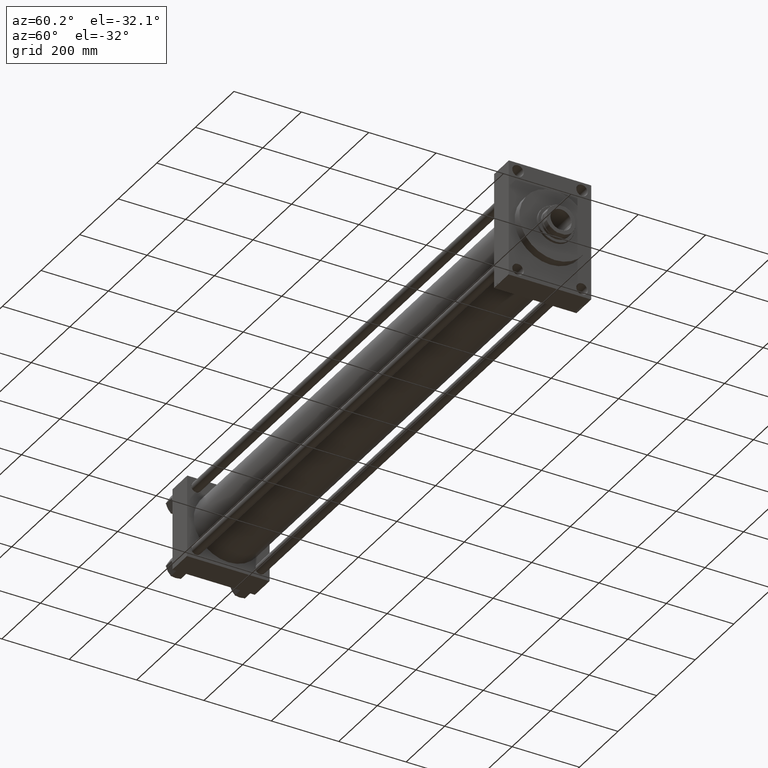
[diagram: clean part render]
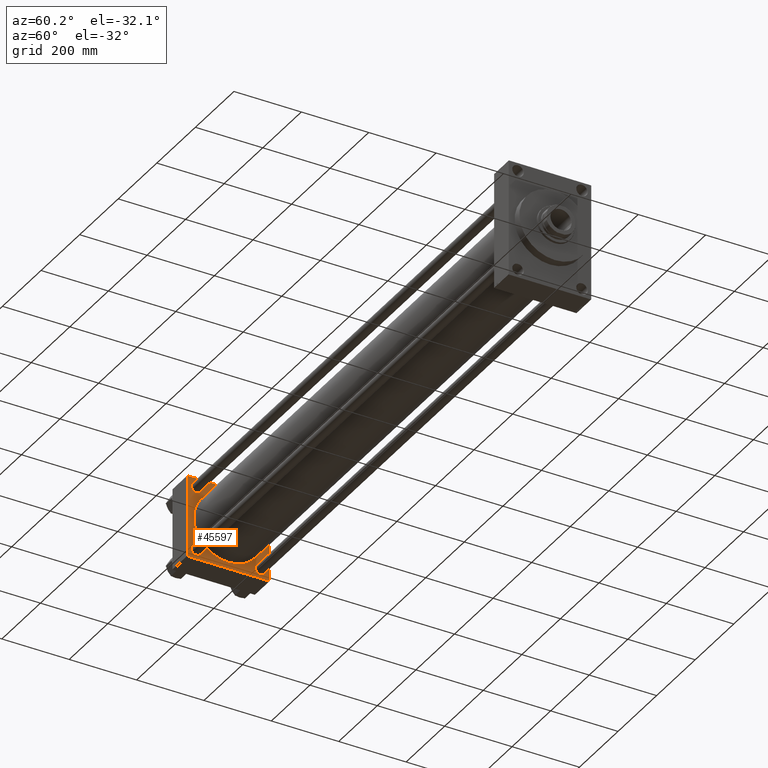
[diagram: same view with one face highlighted and labeled with its STEP entity id]
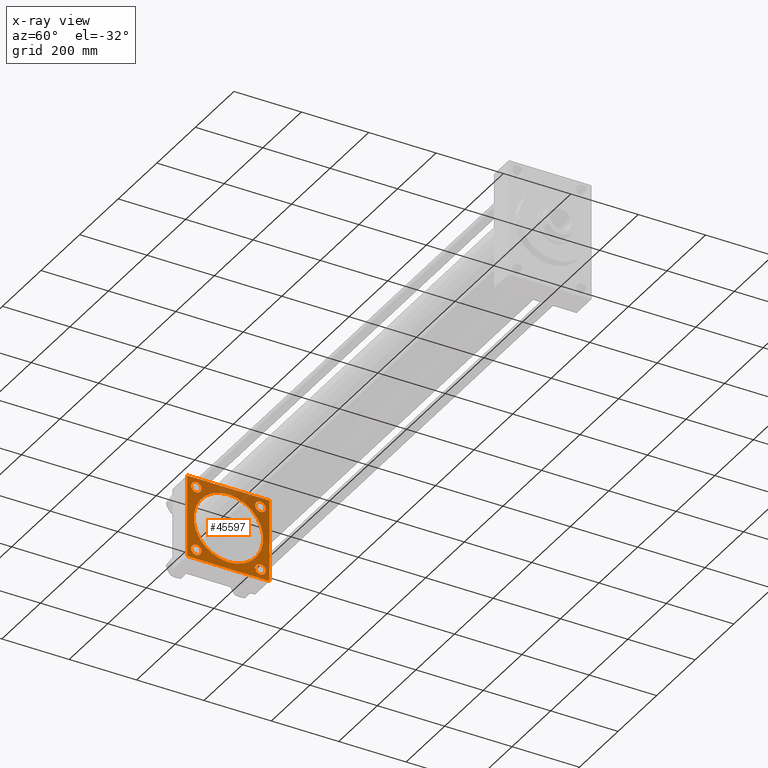
[diagram: x-ray of the same camera — body ghosted, the highlighted face saturated]
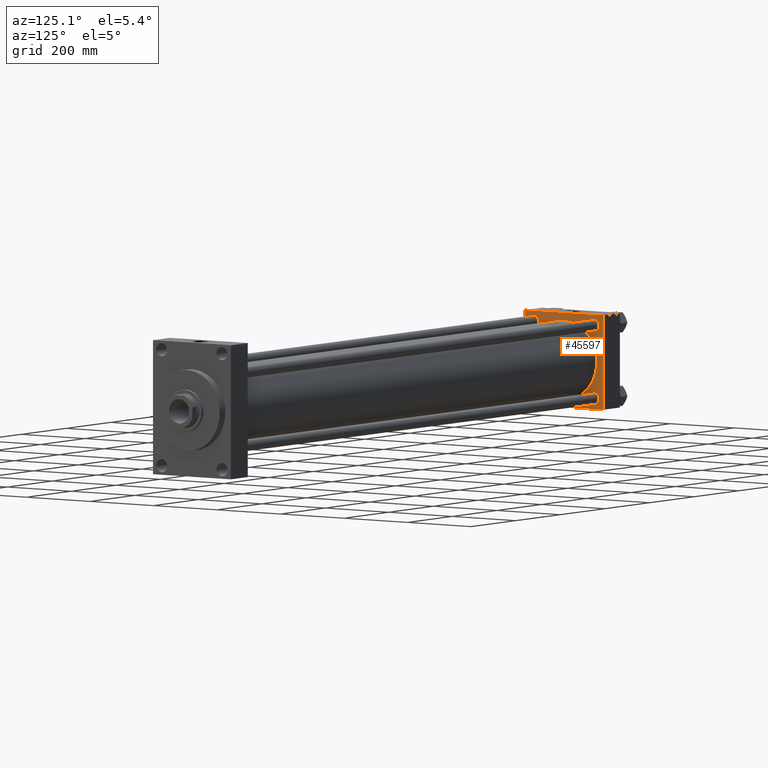
[diagram: same view with one face highlighted and labeled with its STEP entity id]
A machine part, auxiliary view. The second image highlights one B-rep face of the part: STEP entity #45597.
The next image is the same camera in x-ray: the body ghosted, the highlighted face saturated — about 27% of this face is hidden behind the body in this view.
A second angle (auxiliary view) of the same face is appended — the face is thin or edge-on in the first view.
In plain terms, the highlighted planar face has unit normal (-1, 0, 0).
Its self-contained STEP definition (entity closure, byte-faithful):
#348 = EDGE_CURVE ( 'NONE', #31773, #16358, #22608, .T. ) ;
#404 = DIRECTION ( 'NONE',  ( -1.000000000000000000, 0.000000000000000000, 0.000000000000000000 ) ) ;
#452 = VECTOR ( 'NONE', #40892, 1000.000000000000000 ) ;
#543 = CARTESIAN_POINT ( 'NONE',  ( 76.00000000000000000, -122.0000000000000000, -122.5000000000000568 ) ) ;
#1310 = VERTEX_POINT ( 'NONE', #21599 ) ;
#1973 = CARTESIAN_POINT ( 'NONE',  ( 76.00000000000000000, 95.09999999999999432, 95.10000000000002274 ) ) ;
#2021 = EDGE_CURVE ( 'NONE', #23591, #25677, #38009, .T. ) ;
#2503 = VERTEX_POINT ( 'NONE', #15025 ) ;
#2662 = VECTOR ( 'NONE', #26235, 1000.000000000000114 ) ;
#2688 = DIRECTION ( 'NONE',  ( 0.000000000000000000, 0.000000000000000000, 1.000000000000000000 ) ) ;
#3137 = CIRCLE ( 'NONE', #13141, 15.50000000000051337 ) ;
#3213 = VERTEX_POINT ( 'NONE', #24702 ) ;
#3504 = ORIENTED_EDGE ( 'NONE', *, *, #15496, .T. ) ;
#3534 = ORIENTED_EDGE ( 'NONE', *, *, #31375, .T. ) ;
#3547 = ORIENTED_EDGE ( 'NONE', *, *, #17311, .F. ) ;
#4047 = CARTESIAN_POINT ( 'NONE',  ( 76.00000000000000000, 122.0000000000000568, -122.5000000000000000 ) ) ;
#4100 = ORIENTED_EDGE ( 'NONE', *, *, #28108, .T. ) ;
#4520 = VERTEX_POINT ( 'NONE', #14119 ) ;
#4765 = CARTESIAN_POINT ( 'NONE',  ( 76.00000000000000000, -95.09999999999996589, -95.10000000000005116 ) ) ;
#4774 = ORIENTED_EDGE ( 'NONE', *, *, #16780, .T. ) ;
#5155 = DIRECTION ( 'NONE',  ( 1.000000000000000000, -0.000000000000000000, -0.000000000000000000 ) ) ;
#6096 = CARTESIAN_POINT ( 'NONE',  ( 76.00000000000000000, 122.5000000000000568, -122.5000000000000000 ) ) ;
#6301 = DIRECTION ( 'NONE',  ( 0.000000000000000000, 0.000000000000000000, 1.000000000000000000 ) ) ;
#6412 = ORIENTED_EDGE ( 'NONE', *, *, #2021, .F. ) ;
#6602 = AXIS2_PLACEMENT_3D ( 'NONE', #17417, #21279, #7291 ) ;
#6649 = ORIENTED_EDGE ( 'NONE', *, *, #7973, .F. ) ;
#7291 = DIRECTION ( 'NONE',  ( 0.000000000000000000, 0.000000000000000000, 1.000000000000000000 ) ) ;
#7973 = EDGE_CURVE ( 'NONE', #46989, #1310, #42696, .T. ) ;
#8257 = ORIENTED_EDGE ( 'NONE', *, *, #28152, .T. ) ;
#8388 = DIRECTION ( 'NONE',  ( 0.000000000000000000, 0.000000000000000000, 1.000000000000000000 ) ) ;
#8552 = VERTEX_POINT ( 'NONE', #19670 ) ;
#8833 = EDGE_CURVE ( 'NONE', #44464, #3213, #36006, .T. ) ;
#8856 = DIRECTION ( 'NONE',  ( 0.000000000000000000, 0.000000000000000000, -1.000000000000000000 ) ) ;
#8991 = AXIS2_PLACEMENT_3D ( 'NONE', #1973, #42673, #2688 ) ;
#9009 = CARTESIAN_POINT ( 'NONE',  ( 76.00000000000000000, -122.5000000000000000, -122.0000000000000568 ) ) ;
#9431 = EDGE_LOOP ( 'NONE', ( #6649, #4100, #6412, #4774, #3504, #24070, #8257, #37307 ) ) ;
#9634 = VECTOR ( 'NONE', #37819, 1000.000000000000000 ) ;
#9673 = CARTESIAN_POINT ( 'NONE',  ( 76.00000000000000000, 122.0000000000000568, 122.5000000000000284 ) ) ;
#10514 = ORIENTED_EDGE ( 'NONE', *, *, #31324, .T. ) ;
#11093 = FACE_BOUND ( 'NONE', #14655, .T. ) ;
#11103 = VERTEX_POINT ( 'NONE', #9673 ) ;
#11721 = CARTESIAN_POINT ( 'NONE',  ( 76.00000000000000000, 122.5000000000000568, 122.0000000000000853 ) ) ;
#12223 = CARTESIAN_POINT ( 'NONE',  ( 76.00000000000000000, 95.09999999999999432, -95.10000000000002274 ) ) ;
#12363 = CIRCLE ( 'NONE', #18510, 15.50000000000051337 ) ;
#12459 = CARTESIAN_POINT ( 'NONE',  ( 76.00000000000000000, -95.09999999999996589, 110.6000000000005627 ) ) ;
#12742 = CIRCLE ( 'NONE', #25848, 15.50000000000029132 ) ;
#12857 = ORIENTED_EDGE ( 'NONE', *, *, #21036, .T. ) ;
#13010 = VECTOR ( 'NONE', #45774, 1000.000000000000000 ) ;
#13141 = AXIS2_PLACEMENT_3D ( 'NONE', #40904, #44513, #22856 ) ;
#13257 = DIRECTION ( 'NONE',  ( -0.000000000000000000, 0.7071067811865474617, 0.7071067811865474617 ) ) ;
#13520 = CARTESIAN_POINT ( 'NONE',  ( 76.00000000000000000, 95.09999999999999432, -95.10000000000002274 ) ) ;
#14119 = CARTESIAN_POINT ( 'NONE',  ( 76.00000000000000000, 95.09999999999999432, 79.59999999999972431 ) ) ;
#14232 = FACE_BOUND ( 'NONE', #27414, .T. ) ;
#14655 = EDGE_LOOP ( 'NONE', ( #12857, #39373 ) ) ;
#14718 = FACE_BOUND ( 'NONE', #26538, .T. ) ;
#15025 = CARTESIAN_POINT ( 'NONE',  ( 76.00000000000000000, -95.09999999999996589, -110.6000000000005627 ) ) ;
#15335 = DIRECTION ( 'NONE',  ( -1.000000000000000000, 0.000000000000000000, 0.000000000000000000 ) ) ;
#15408 = VERTEX_POINT ( 'NONE', #36860 ) ;
#15496 = EDGE_CURVE ( 'NONE', #11103, #31773, #37332, .T. ) ;
#15897 = CIRCLE ( 'NONE', #43563, 15.50000000000029132 ) ;
#15908 = EDGE_CURVE ( 'NONE', #15408, #8552, #12742, .T. ) ;
#15987 = AXIS2_PLACEMENT_3D ( 'NONE', #34988, #35704, #16918 ) ;
#16081 = AXIS2_PLACEMENT_3D ( 'NONE', #17602, #25790, #29643 ) ;
#16247 = CARTESIAN_POINT ( 'NONE',  ( 76.00000000000007105, -2.602085213965210642E-15, 0.000000000000000000 ) ) ;
#16358 = VERTEX_POINT ( 'NONE', #30840 ) ;
#16395 = LINE ( 'NONE', #31101, #35327 ) ;
#16531 = VECTOR ( 'NONE', #8856, 1000.000000000000000 ) ;
#16780 = EDGE_CURVE ( 'NONE', #23591, #11103, #23314, .T. ) ;
#16918 = DIRECTION ( 'NONE',  ( 0.000000000000000000, 0.000000000000000000, 1.000000000000000000 ) ) ;
#16999 = CARTESIAN_POINT ( 'NONE',  ( 76.00000000000000000, 122.5000000000000568, -121.9999999999999432 ) ) ;
#17157 = EDGE_CURVE ( 'NONE', #17189, #38064, #45084, .T. ) ;
#17175 = DIRECTION ( 'NONE',  ( 0.000000000000000000, -1.000000000000000000, -2.265761274745216987E-16 ) ) ;
#17189 = VERTEX_POINT ( 'NONE', #27812 ) ;
#17311 = EDGE_CURVE ( 'NONE', #38064, #17189, #40482, .T. ) ;
#17365 = EDGE_CURVE ( 'NONE', #22760, #1310, #45089, .T. ) ;
#17417 = CARTESIAN_POINT ( 'NONE',  ( 76.00000000000007105, -2.602085213965210642E-15, 0.000000000000000000 ) ) ;
#17602 = CARTESIAN_POINT ( 'NONE',  ( 76.00000000000000000, 0.000000000000000000, 0.000000000000000000 ) ) ;
#18510 = AXIS2_PLACEMENT_3D ( 'NONE', #4765, #30312, #8388 ) ;
#19264 = CARTESIAN_POINT ( 'NONE',  ( 76.00000000000000000, 122.5000000000000568, 122.5000000000000284 ) ) ;
#19445 = CARTESIAN_POINT ( 'NONE',  ( 76.00000000000000000, 122.0000000000000568, 122.5000000000000284 ) ) ;
#19595 = ORIENTED_EDGE ( 'NONE', *, *, #8833, .T. ) ;
#19670 = CARTESIAN_POINT ( 'NONE',  ( 76.00000000000000000, 95.09999999999999432, -110.6000000000003070 ) ) ;
#19716 = VECTOR ( 'NONE', #22249, 1000.000000000000114 ) ;
#20019 = CIRCLE ( 'NONE', #28490, 15.50000000000051337 ) ;
#20072 = CARTESIAN_POINT ( 'NONE',  ( 76.00000000000000000, 95.09999999999999432, 95.10000000000002274 ) ) ;
#20813 = DIRECTION ( 'NONE',  ( 0.000000000000000000, 0.000000000000000000, 1.000000000000000000 ) ) ;
#20990 = EDGE_LOOP ( 'NONE', ( #32485, #34683 ) ) ;
#21036 = EDGE_CURVE ( 'NONE', #4520, #45788, #15897, .T. ) ;
#21279 = DIRECTION ( 'NONE',  ( 1.000000000000000000, -0.000000000000000000, -0.000000000000000000 ) ) ;
#21599 = CARTESIAN_POINT ( 'NONE',  ( 76.00000000000000000, -122.0000000000000000, -122.5000000000000568 ) ) ;
#22249 = DIRECTION ( 'NONE',  ( 0.000000000000000000, 0.7071067811865474617, -0.7071067811865474617 ) ) ;
#22430 = EDGE_LOOP ( 'NONE', ( #27275, #10514 ) ) ;
#22608 = LINE ( 'NONE', #44510, #2662 ) ;
#22760 = VERTEX_POINT ( 'NONE', #9009 ) ;
#22856 = DIRECTION ( 'NONE',  ( 0.000000000000000000, 0.000000000000000000, 1.000000000000000000 ) ) ;
#23238 = DIRECTION ( 'NONE',  ( 0.000000000000000000, 0.000000000000000000, 1.000000000000000000 ) ) ;
#23314 = LINE ( 'NONE', #19445, #452 ) ;
#23591 = VERTEX_POINT ( 'NONE', #11721 ) ;
#23641 = CARTESIAN_POINT ( 'NONE',  ( 76.00000000000000000, -122.4999999999999716, 122.5000000000000000 ) ) ;
#24070 = ORIENTED_EDGE ( 'NONE', *, *, #348, .T. ) ;
#24079 = CARTESIAN_POINT ( 'NONE',  ( 76.00000000000000000, 95.09999999999999432, 110.6000000000003070 ) ) ;
#24702 = CARTESIAN_POINT ( 'NONE',  ( 76.00000000000000000, -95.09999999999996589, 79.59999999999952536 ) ) ;
#25164 = CIRCLE ( 'NONE', #8991, 15.50000000000029132 ) ;
#25677 = VERTEX_POINT ( 'NONE', #16999 ) ;
#25790 = DIRECTION ( 'NONE',  ( -1.000000000000000000, 0.000000000000000000, 0.000000000000000000 ) ) ;
#25848 = AXIS2_PLACEMENT_3D ( 'NONE', #12223, #404, #40882 ) ;
#25977 = EDGE_CURVE ( 'NONE', #8552, #15408, #38312, .T. ) ;
#26187 = DIRECTION ( 'NONE',  ( 0.000000000000000000, 0.000000000000000000, 1.000000000000000000 ) ) ;
#26235 = DIRECTION ( 'NONE',  ( -0.000000000000000000, -0.7071067811865867636, -0.7071067811865082708 ) ) ;
#26538 = EDGE_LOOP ( 'NONE', ( #3534, #19595 ) ) ;
#27275 = ORIENTED_EDGE ( 'NONE', *, *, #33926, .T. ) ;
#27414 = EDGE_LOOP ( 'NONE', ( #3547, #28543 ) ) ;
#27420 = CARTESIAN_POINT ( 'NONE',  ( 76.00000000000000000, 122.5000000000000568, 122.5000000000000284 ) ) ;
#27812 = CARTESIAN_POINT ( 'NONE',  ( 76.00000000000007105, 1.001177681725252697E-14, -103.0000000000000000 ) ) ;
#28108 = EDGE_CURVE ( 'NONE', #46989, #25677, #16395, .T. ) ;
#28152 = EDGE_CURVE ( 'NONE', #16358, #22760, #41921, .T. ) ;
#28490 = AXIS2_PLACEMENT_3D ( 'NONE', #37962, #15335, #26187 ) ;
#28543 = ORIENTED_EDGE ( 'NONE', *, *, #17157, .F. ) ;
#28937 = PLANE ( 'NONE',  #16081 ) ;
#29643 = DIRECTION ( 'NONE',  ( 0.000000000000000000, 0.000000000000000000, 1.000000000000000000 ) ) ;
#29880 = AXIS2_PLACEMENT_3D ( 'NONE', #13520, #46517, #6301 ) ;
#30312 = DIRECTION ( 'NONE',  ( -1.000000000000000000, 0.000000000000000000, 0.000000000000000000 ) ) ;
#30840 = CARTESIAN_POINT ( 'NONE',  ( 76.00000000000000000, -122.4999999999999716, 122.0000000000001137 ) ) ;
#30916 = VERTEX_POINT ( 'NONE', #40731 ) ;
#31101 = CARTESIAN_POINT ( 'NONE',  ( 76.00000000000000000, 122.5000000000000568, -122.0000000000000000 ) ) ;
#31324 = EDGE_CURVE ( 'NONE', #30916, #2503, #12363, .T. ) ;
#31371 = VECTOR ( 'NONE', #17175, 1000.000000000000000 ) ;
#31375 = EDGE_CURVE ( 'NONE', #3213, #44464, #3137, .T. ) ;
#31400 = DIRECTION ( 'NONE',  ( -1.000000000000000000, 0.000000000000000000, 0.000000000000000000 ) ) ;
#31773 = VERTEX_POINT ( 'NONE', #42436 ) ;
#32485 = ORIENTED_EDGE ( 'NONE', *, *, #25977, .T. ) ;
#33926 = EDGE_CURVE ( 'NONE', #2503, #30916, #20019, .T. ) ;
#34330 = AXIS2_PLACEMENT_3D ( 'NONE', #16247, #5155, #20813 ) ;
#34683 = ORIENTED_EDGE ( 'NONE', *, *, #15908, .T. ) ;
#34988 = CARTESIAN_POINT ( 'NONE',  ( 76.00000000000000000, -95.09999999999996589, 95.10000000000005116 ) ) ;
#35327 = VECTOR ( 'NONE', #13257, 1000.000000000000114 ) ;
#35704 = DIRECTION ( 'NONE',  ( -1.000000000000000000, 0.000000000000000000, 0.000000000000000000 ) ) ;
#36006 = CIRCLE ( 'NONE', #15987, 15.50000000000051337 ) ;
#36860 = CARTESIAN_POINT ( 'NONE',  ( 76.00000000000000000, 95.09999999999999432, -79.59999999999972431 ) ) ;
#37307 = ORIENTED_EDGE ( 'NONE', *, *, #17365, .T. ) ;
#37332 = LINE ( 'NONE', #19264, #9634 ) ;
#37819 = DIRECTION ( 'NONE',  ( 0.000000000000000000, -1.000000000000000000, -1.132880637372608740E-16 ) ) ;
#37962 = CARTESIAN_POINT ( 'NONE',  ( 76.00000000000000000, -95.09999999999996589, -95.10000000000005116 ) ) ;
#38009 = LINE ( 'NONE', #27420, #16531 ) ;
#38064 = VERTEX_POINT ( 'NONE', #46377 ) ;
#38312 = CIRCLE ( 'NONE', #29880, 15.50000000000029132 ) ;
#39373 = ORIENTED_EDGE ( 'NONE', *, *, #40662, .T. ) ;
#40239 = FACE_OUTER_BOUND ( 'NONE', #9431, .T. ) ;
#40482 = CIRCLE ( 'NONE', #6602, 103.0000000000000000 ) ;
#40662 = EDGE_CURVE ( 'NONE', #45788, #4520, #25164, .T. ) ;
#40731 = CARTESIAN_POINT ( 'NONE',  ( 76.00000000000000000, -95.09999999999996589, -79.59999999999952536 ) ) ;
#40882 = DIRECTION ( 'NONE',  ( 0.000000000000000000, 0.000000000000000000, 1.000000000000000000 ) ) ;
#40892 = DIRECTION ( 'NONE',  ( 0.000000000000000000, -0.7071067811865868746, 0.7071067811865081598 ) ) ;
#40904 = CARTESIAN_POINT ( 'NONE',  ( 76.00000000000000000, -95.09999999999996589, 95.10000000000005116 ) ) ;
#41921 = LINE ( 'NONE', #23641, #13010 ) ;
#42436 = CARTESIAN_POINT ( 'NONE',  ( 76.00000000000000000, -121.9999999999999716, 122.5000000000000000 ) ) ;
#42673 = DIRECTION ( 'NONE',  ( -1.000000000000000000, 0.000000000000000000, 0.000000000000000000 ) ) ;
#42696 = LINE ( 'NONE', #6096, #31371 ) ;
#43563 = AXIS2_PLACEMENT_3D ( 'NONE', #20072, #31400, #23238 ) ;
#43848 = FACE_BOUND ( 'NONE', #22430, .T. ) ;
#44464 = VERTEX_POINT ( 'NONE', #12459 ) ;
#44510 = CARTESIAN_POINT ( 'NONE',  ( 76.00000000000000000, -122.4999999999999716, 122.0000000000001137 ) ) ;
#44513 = DIRECTION ( 'NONE',  ( -1.000000000000000000, 0.000000000000000000, 0.000000000000000000 ) ) ;
#45084 = CIRCLE ( 'NONE', #34330, 103.0000000000000000 ) ;
#45089 = LINE ( 'NONE', #543, #19716 ) ;
#45597 = ADVANCED_FACE ( 'NONE', ( #43848, #47215, #14718, #11093, #14232, #40239 ), #28937, .F. ) ;
#45774 = DIRECTION ( 'NONE',  ( 0.000000000000000000, -1.132880637372608493E-16, -1.000000000000000000 ) ) ;
#45788 = VERTEX_POINT ( 'NONE', #24079 ) ;
#46377 = CARTESIAN_POINT ( 'NONE',  ( 76.00000000000007105, -2.602085213965210642E-15, 103.0000000000000000 ) ) ;
#46517 = DIRECTION ( 'NONE',  ( -1.000000000000000000, 0.000000000000000000, 0.000000000000000000 ) ) ;
#46989 = VERTEX_POINT ( 'NONE', #4047 ) ;
#47215 = FACE_BOUND ( 'NONE', #20990, .T. ) ;